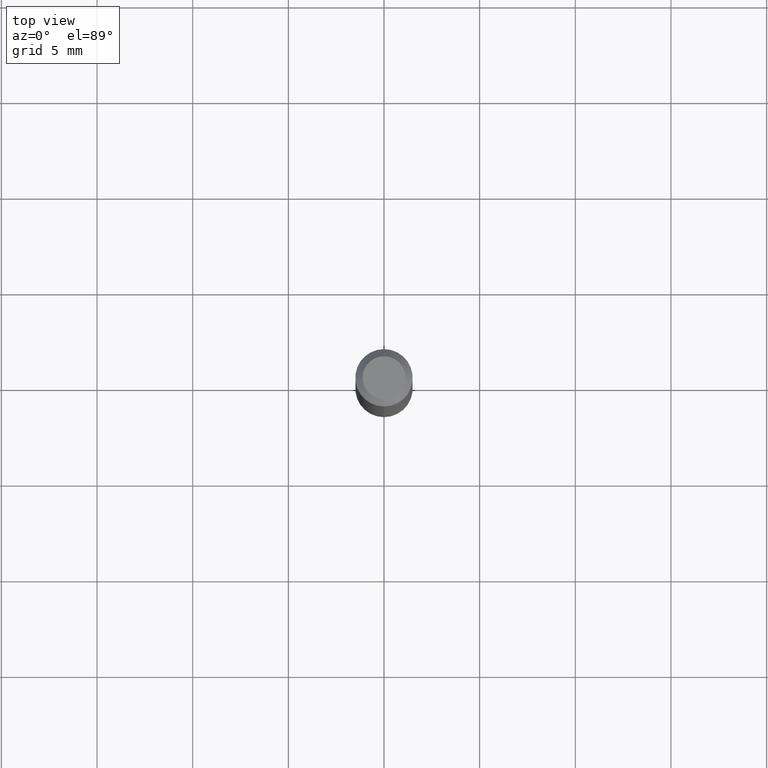
[diagram: clean part render]
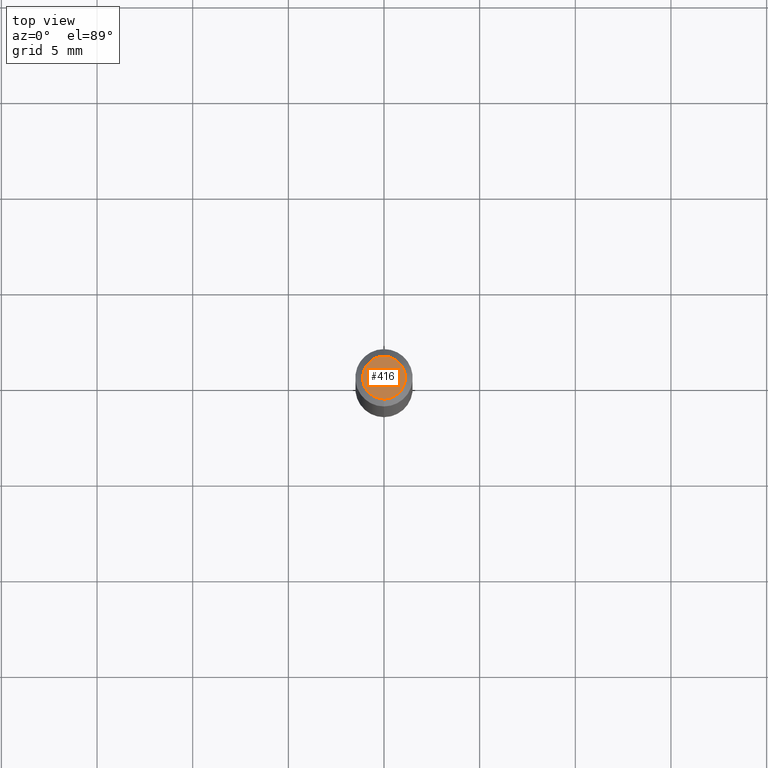
[diagram: same view with one face highlighted and labeled with its STEP entity id]
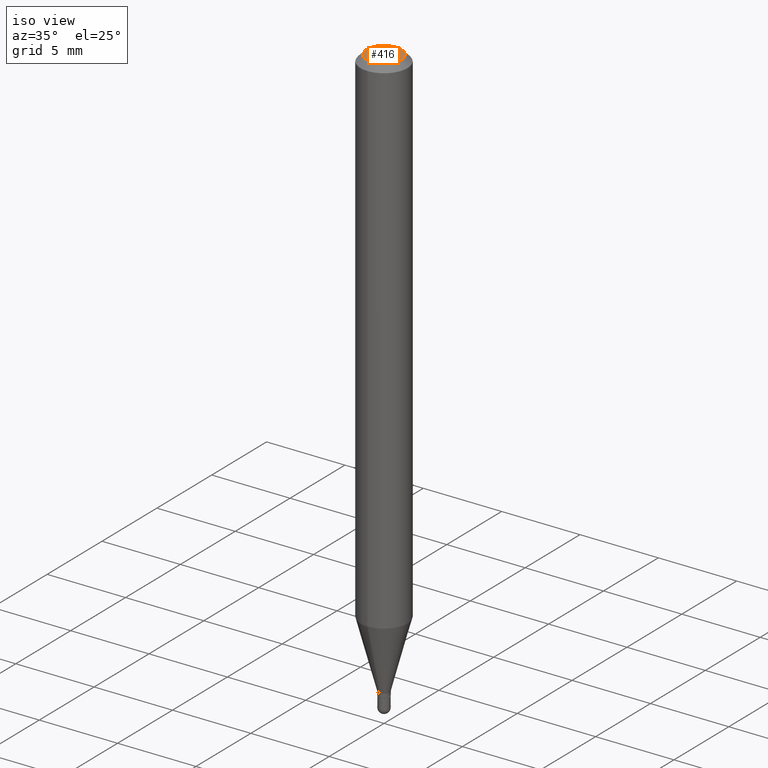
[diagram: same view with one face highlighted and labeled with its STEP entity id]
A machine part, top view. The second image highlights one B-rep face of the part: STEP entity #416.
A second angle (iso view) of the same face is appended — the face is thin or edge-on in the first view.
In plain terms, the highlighted planar face has unit normal (0, -0, -1).
Its self-contained STEP definition (entity closure, byte-faithful):
#8 = DIRECTION ( 'NONE',  ( -2.445422202875732962E-29, 3.491548077434707223E-15, 1.000000000000000000 ) ) ;
#21 = ORIENTED_EDGE ( 'NONE', *, *, #191, .T. ) ;
#75 = FACE_OUTER_BOUND ( 'NONE', #149, .T. ) ;
#86 = CARTESIAN_POINT ( 'NONE',  ( -3.536586717851222218E-16, -0.04404999999999999888, 1.299433897645709742E-16 ) ) ;
#106 = CARTESIAN_POINT ( 'NONE',  ( 5.834606941487536772E-46, -8.330590368068735141E-32, -2.385930304642788849E-17 ) ) ;
#140 = VERTEX_POINT ( 'NONE', #86 ) ;
#149 = EDGE_LOOP ( 'NONE', ( #294, #21 ) ) ;
#191 = EDGE_CURVE ( 'NONE', #140, #213, #258, .T. ) ;
#192 = CARTESIAN_POINT ( 'NONE',  ( 3.075995059520799729E-16, 0.04404999999999999888, -1.657323443342127900E-16 ) ) ;
#198 = DIRECTION ( 'NONE',  ( -6.982962677686265133E-15, -1.000000000000000000, 3.491548077434707617E-15 ) ) ;
#213 = VERTEX_POINT ( 'NONE', #426 ) ;
#222 = PLANE ( 'NONE',  #263 ) ;
#258 = CIRCLE ( 'NONE', #504, 0.04404999999999999888 ) ;
#263 = AXIS2_PLACEMENT_3D ( 'NONE', #192, #503, #381 ) ;
#294 = ORIENTED_EDGE ( 'NONE', *, *, #340, .T. ) ;
#308 = AXIS2_PLACEMENT_3D ( 'NONE', #106, #8, #363 ) ;
#312 = DIRECTION ( 'NONE',  ( -2.445422202875732962E-29, 3.491548077434707223E-15, 1.000000000000000000 ) ) ;
#320 = CARTESIAN_POINT ( 'NONE',  ( 5.834606941487536772E-46, -8.330590368068735141E-32, -2.385930304642788849E-17 ) ) ;
#340 = EDGE_CURVE ( 'NONE', #213, #140, #375, .T. ) ;
#363 = DIRECTION ( 'NONE',  ( -6.982962677686265133E-15, -1.000000000000000000, 3.491548077434707617E-15 ) ) ;
#375 = CIRCLE ( 'NONE', #308, 0.04404999999999999888 ) ;
#381 = DIRECTION ( 'NONE',  ( 6.982962677686265922E-15, 1.000000000000000000, -3.491548077434707223E-15 ) ) ;
#416 = ADVANCED_FACE ( 'NONE', ( #75 ), #222, .F. ) ;
#426 = CARTESIAN_POINT ( 'NONE',  ( 3.599717260347271507E-16, 0.04404999999999999888, -1.776619958574267697E-16 ) ) ;
#503 = DIRECTION ( 'NONE',  ( 2.445422202875732682E-29, -3.491548077434707223E-15, -1.000000000000000000 ) ) ;
#504 = AXIS2_PLACEMENT_3D ( 'NONE', #320, #312, #198 ) ;